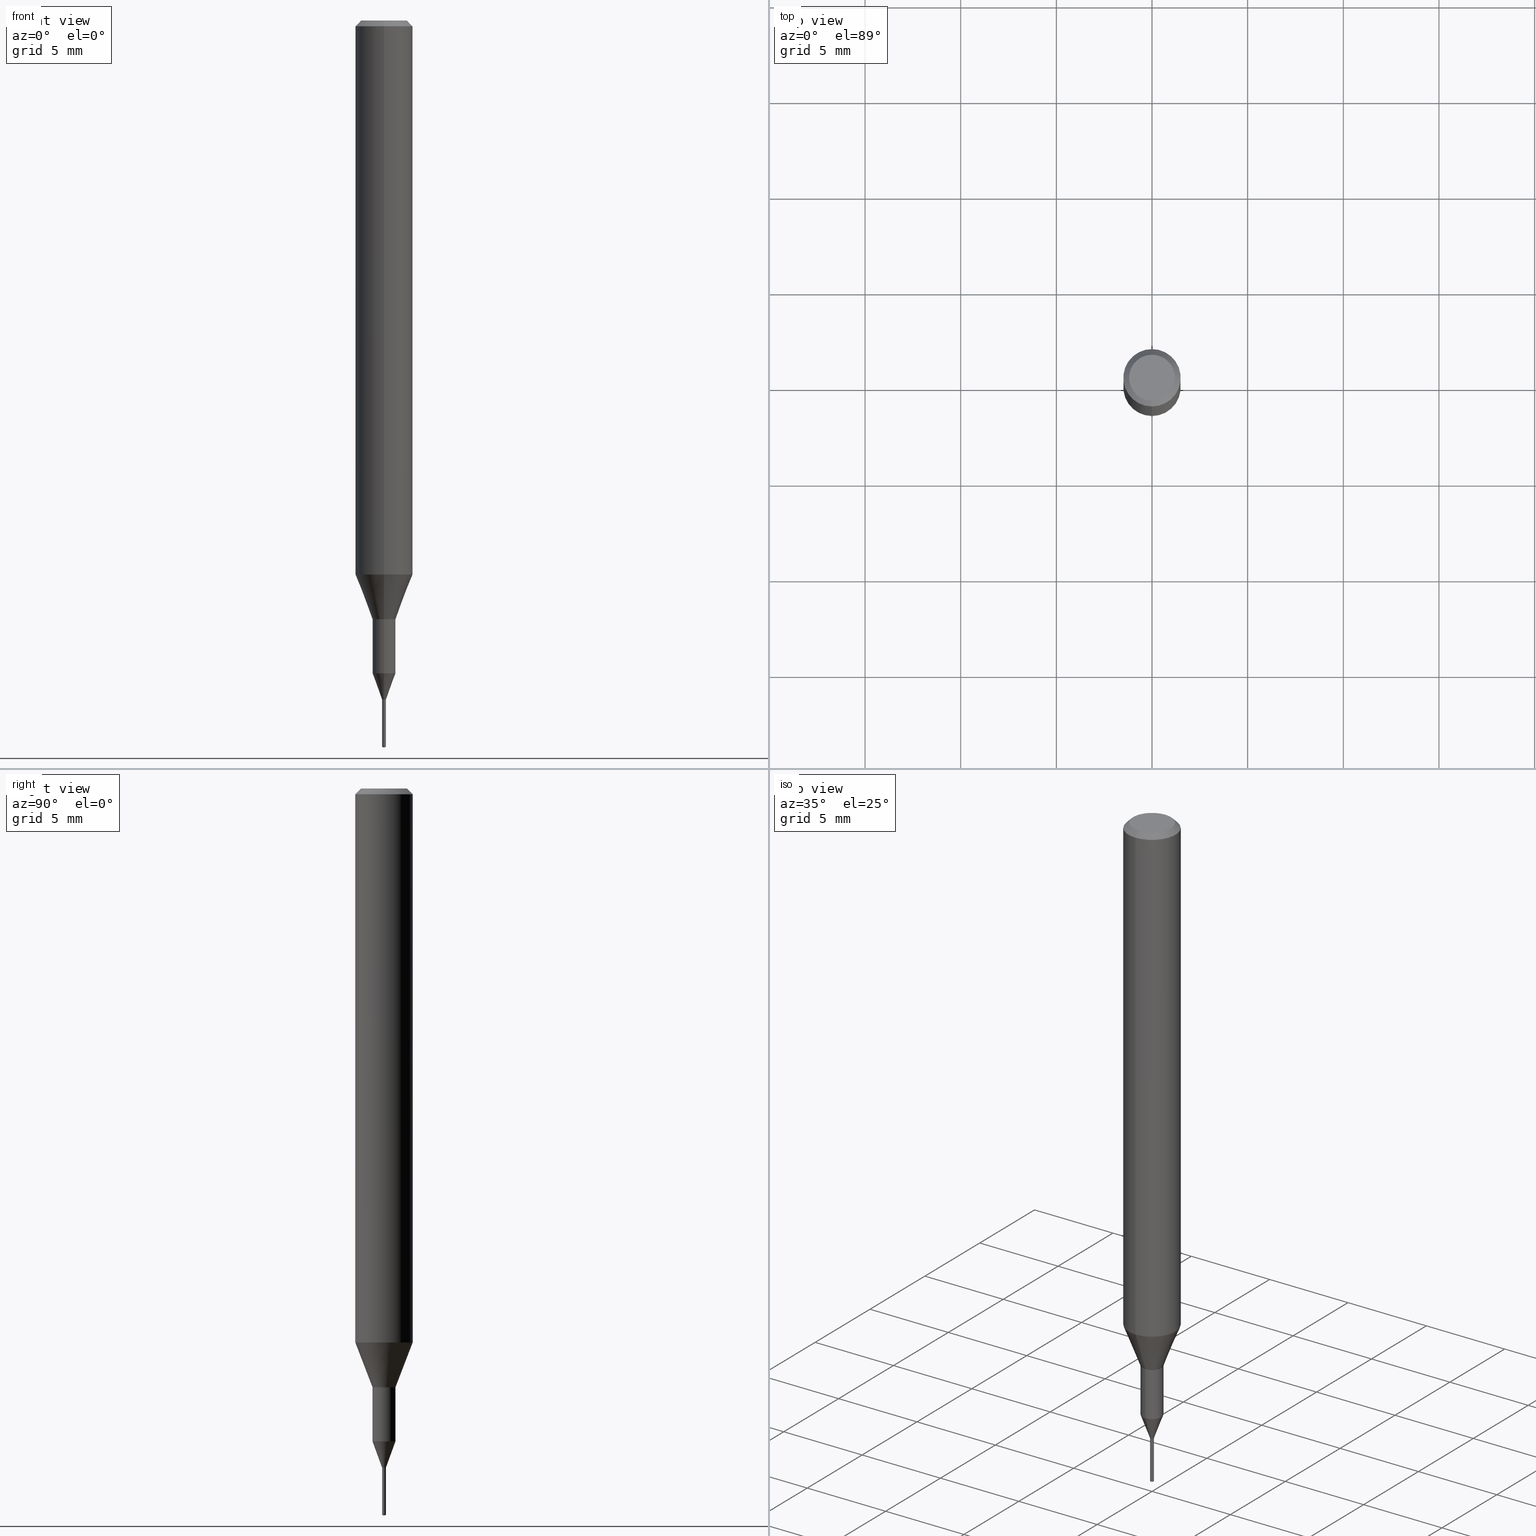
[diagram: canonical four-view strip — front | top / right | iso, engineering-drawing reading convention]
A machine part, canonical four-view strip (front | top / right | iso — engineering-drawing reading convention). The complete STEP part file that produces these views, byte-faithful:
ISO-10303-21;
HEADER;
FILE_DESCRIPTION(('no description'),'unknown implementation level');
FILE_NAME('C-UMD2020-025-Huellk.stp','  ',('CIMSOURCE GmbH'),('CADClick - KiM GmbH - www.kimweb.de'),'unknown preprocess','ACIS','unknown authorization');
FILE_SCHEMA(('automotive_design'));
ENDSEC;
DATA;
#1=MECHANICAL_DESIGN_GEOMETRIC_PRESENTATION_REPRESENTATION(' ',(#14,#15,#16,#17,#18,#19,#20,#21,#22,#23,#24,#25,#26,#27,#28,#29,#30,#31,#32,#33,#34,#35,#36,#37,#38,#39,#40,#41,#42,#43,#44,#45,#46,#47,#48,#49,#50,#51,#52,#53,#54,#55,#56,#57,#58,#59,#60,#61,#62,#63,#64,#65,#66,#67,#68,#69,#70,#71,#72,#73,#74,#75,#76,#77,#78,#79,#80,#81,#82,#83,#84,#85,#86,#87,#88,#89,#90,#91,#92),#10);
#2=PRODUCT_DEFINITION_CONTEXT('',#93,'design');
#3=APPLICATION_PROTOCOL_DEFINITION('INTERNATIONAL STANDARD','automotive_design',1994,#93);
#4=PRODUCT_CATEGORY_RELATIONSHIP('NONE','NONE',#94,#95);
#5=SHAPE_DEFINITION_REPRESENTATION(#96,#97);
#6=PRODUCT_DEFINITION_CONTEXT('',#98,'design');
#7=APPLICATION_PROTOCOL_DEFINITION('INTERNATIONAL STANDARD','automotive_design',1994,#98);
#8=PRODUCT_CATEGORY_RELATIONSHIP('NONE','NONE',#99,#100);
#9=SHAPE_DEFINITION_REPRESENTATION(#101,#102);
#10= (GEOMETRIC_REPRESENTATION_CONTEXT(3)GLOBAL_UNCERTAINTY_ASSIGNED_CONTEXT((#105))GLOBAL_UNIT_ASSIGNED_CONTEXT((#107,#108,#109))REPRESENTATION_CONTEXT('NONE','WORKSPACE'));
#14=STYLED_ITEM('',(#111),#112);
#15=STYLED_ITEM('',(#113),#114);
#16=STYLED_ITEM('',(#115),#116);
#17=STYLED_ITEM('',(#117),#118);
#18=STYLED_ITEM('',(#119),#120);
#19=STYLED_ITEM('',(#121),#122);
#20=STYLED_ITEM('',(#123),#124);
#21=STYLED_ITEM('',(#125),#126);
#22=STYLED_ITEM('',(#127),#128);
#23=STYLED_ITEM('',(#129),#130);
#24=STYLED_ITEM('',(#131),#132);
#25=STYLED_ITEM('',(#133),#134);
#26=STYLED_ITEM('',(#135),#136);
#27=STYLED_ITEM('',(#137),#138);
#28=STYLED_ITEM('',(#139),#140);
#29=STYLED_ITEM('',(#141),#142);
#30=STYLED_ITEM('',(#143),#144);
#31=STYLED_ITEM('',(#145),#146);
#32=STYLED_ITEM('',(#147),#148);
#33=STYLED_ITEM('',(#149),#150);
#34=STYLED_ITEM('',(#151),#152);
#35=STYLED_ITEM('',(#153),#154);
#36=STYLED_ITEM('',(#155),#156);
#37=STYLED_ITEM('',(#157),#158);
#38=STYLED_ITEM('',(#159),#160);
#39=STYLED_ITEM('',(#161),#162);
#40=STYLED_ITEM('',(#163),#164);
#41=STYLED_ITEM('',(#165),#166);
#42=STYLED_ITEM('',(#167),#168);
#43=STYLED_ITEM('',(#169),#170);
#44=STYLED_ITEM('',(#171),#172);
#45=STYLED_ITEM('',(#173),#174);
#46=STYLED_ITEM('',(#175),#176);
#47=STYLED_ITEM('',(#177),#178);
#48=STYLED_ITEM('',(#179),#180);
#49=STYLED_ITEM('',(#181),#182);
#50=STYLED_ITEM('',(#183),#184);
#51=STYLED_ITEM('',(#185),#186);
#52=STYLED_ITEM('',(#187),#188);
#53=STYLED_ITEM('',(#189),#190);
#54=STYLED_ITEM('',(#191),#192);
#55=STYLED_ITEM('',(#193),#194);
#56=STYLED_ITEM('',(#195),#196);
#57=STYLED_ITEM('',(#197),#198);
#58=STYLED_ITEM('',(#199),#200);
#59=STYLED_ITEM('',(#201),#202);
#60=STYLED_ITEM('',(#203),#204);
#61=STYLED_ITEM('',(#205),#206);
#62=STYLED_ITEM('',(#207),#208);
#63=STYLED_ITEM('',(#209),#210);
#64=STYLED_ITEM('',(#211),#212);
#65=STYLED_ITEM('',(#213),#214);
#66=STYLED_ITEM('',(#215),#216);
#67=STYLED_ITEM('',(#217),#218);
#68=STYLED_ITEM('',(#219),#220);
#69=STYLED_ITEM('',(#221),#222);
#70=STYLED_ITEM('',(#223),#224);
#71=STYLED_ITEM('',(#225),#226);
#72=STYLED_ITEM('',(#227),#228);
#73=STYLED_ITEM('',(#229),#230);
#74=STYLED_ITEM('',(#231),#232);
#75=STYLED_ITEM('',(#233),#234);
#76=STYLED_ITEM('',(#235),#236);
#77=STYLED_ITEM('',(#237),#238);
#78=STYLED_ITEM('',(#239),#240);
#79=STYLED_ITEM('',(#241),#242);
#80=STYLED_ITEM('',(#243),#244);
#81=STYLED_ITEM('',(#245),#246);
#82=STYLED_ITEM('',(#247),#248);
#83=STYLED_ITEM('',(#249),#250);
#84=STYLED_ITEM('',(#251),#252);
#85=STYLED_ITEM('',(#253),#254);
#86=STYLED_ITEM('',(#255),#256);
#87=STYLED_ITEM('',(#257),#258);
#88=STYLED_ITEM('',(#259),#260);
#89=STYLED_ITEM('',(#261),#262);
#90=STYLED_ITEM('',(#263),#264);
#91=STYLED_ITEM('',(#265),#266);
#92=STYLED_ITEM('',(#267),#268);
#93=APPLICATION_CONTEXT(' ');
#94=PRODUCT_CATEGORY('part','NONE');
#95=PRODUCT_RELATED_PRODUCT_CATEGORY('detail',' ',(#269));
#96=PRODUCT_DEFINITION_SHAPE('NONE','NONE',#270);
#97=ADVANCED_BREP_SHAPE_REPRESENTATION('1',(#114,#271),#10);
#98=APPLICATION_CONTEXT(' ');
#99=PRODUCT_CATEGORY('part','NONE');
#100=PRODUCT_RELATED_PRODUCT_CATEGORY('detail',' ',(#272));
#101=PRODUCT_DEFINITION_SHAPE('NONE','NONE',#273);
#102=ADVANCED_BREP_SHAPE_REPRESENTATION('2',(#148,#274),#10);
#105=UNCERTAINTY_MEASURE_WITH_UNIT(LENGTH_MEASURE(1.0E-006),#107,'','');
#107= (CONVERSION_BASED_UNIT('MILLIMETRE',#277)LENGTH_UNIT()NAMED_UNIT(#280));
#108= (NAMED_UNIT(#282)PLANE_ANGLE_UNIT()SI_UNIT($,.RADIAN.));
#109= (NAMED_UNIT(#282)SOLID_ANGLE_UNIT()SI_UNIT($,.STERADIAN.));
#111=PRESENTATION_STYLE_ASSIGNMENT((#288));
#112=EDGE_CURVE('',#200,#206,#289,.T.);
#113=PRESENTATION_STYLE_ASSIGNMENT((#290));
#114=MANIFOLD_SOLID_BREP('1',#291);
#115=PRESENTATION_STYLE_ASSIGNMENT((#292));
#116=EDGE_CURVE('',#202,#266,#293,.T.);
#117=PRESENTATION_STYLE_ASSIGNMENT((#294));
#118=ADVANCED_FACE('',(#295),#296,.T.);
#119=PRESENTATION_STYLE_ASSIGNMENT((#297));
#120=EDGE_CURVE('',#266,#144,#298,.T.);
#121=PRESENTATION_STYLE_ASSIGNMENT((#299));
#122=VERTEX_POINT('',#300);
#123=PRESENTATION_STYLE_ASSIGNMENT((#301));
#124=VERTEX_POINT('',#302);
#125=PRESENTATION_STYLE_ASSIGNMENT((#303));
#126=EDGE_CURVE('',#146,#190,#304,.T.);
#127=PRESENTATION_STYLE_ASSIGNMENT((#305));
#128=ADVANCED_FACE('',(#306),#307,.T.);
#129=PRESENTATION_STYLE_ASSIGNMENT((#308));
#130=EDGE_CURVE('',#240,#162,#309,.T.);
#131=PRESENTATION_STYLE_ASSIGNMENT((#310));
#132=ADVANCED_FACE('',(#311),#312,.T.);
#133=PRESENTATION_STYLE_ASSIGNMENT((#313));
#134=EDGE_CURVE('',#124,#240,#314,.T.);
#135=PRESENTATION_STYLE_ASSIGNMENT((#315));
#136=EDGE_CURVE('',#188,#190,#316,.T.);
#137=PRESENTATION_STYLE_ASSIGNMENT((#317));
#138=EDGE_CURVE('',#250,#206,#318,.T.);
#139=PRESENTATION_STYLE_ASSIGNMENT((#319));
#140=EDGE_CURVE('',#218,#250,#320,.T.);
#141=PRESENTATION_STYLE_ASSIGNMENT((#321));
#142=EDGE_CURVE('',#162,#188,#322,.T.);
#143=PRESENTATION_STYLE_ASSIGNMENT((#323));
#144=VERTEX_POINT('',#324);
#145=PRESENTATION_STYLE_ASSIGNMENT((#325));
#146=VERTEX_POINT('',#326);
#147=PRESENTATION_STYLE_ASSIGNMENT((#327));
#148=MANIFOLD_SOLID_BREP('2',#328);
#149=PRESENTATION_STYLE_ASSIGNMENT((#329));
#150=ADVANCED_FACE('',(#330),#331,.T.);
#151=PRESENTATION_STYLE_ASSIGNMENT((#332));
#152=EDGE_CURVE('',#144,#234,#333,.T.);
#153=PRESENTATION_STYLE_ASSIGNMENT((#334));
#154=VERTEX_POINT('',#335);
#155=PRESENTATION_STYLE_ASSIGNMENT((#336));
#156=EDGE_CURVE('',#240,#198,#337,.T.);
#157=PRESENTATION_STYLE_ASSIGNMENT((#338));
#158=EDGE_CURVE('',#154,#254,#339,.T.);
#159=PRESENTATION_STYLE_ASSIGNMENT((#340));
#160=ADVANCED_FACE('',(#341),#342,.T.);
#161=PRESENTATION_STYLE_ASSIGNMENT((#343));
#162=VERTEX_POINT('',#344);
#163=PRESENTATION_STYLE_ASSIGNMENT((#345));
#164=EDGE_CURVE('',#254,#202,#346,.T.);
#165=PRESENTATION_STYLE_ASSIGNMENT((#347));
#166=EDGE_CURVE('',#154,#266,#348,.T.);
#167=PRESENTATION_STYLE_ASSIGNMENT((#349));
#168=EDGE_CURVE('',#146,#124,#350,.T.);
#169=PRESENTATION_STYLE_ASSIGNMENT((#351));
#170=ADVANCED_FACE('',(#352),#353,.T.);
#171=PRESENTATION_STYLE_ASSIGNMENT((#354));
#172=EDGE_CURVE('',#122,#196,#355,.T.);
#173=PRESENTATION_STYLE_ASSIGNMENT((#356));
#174=ADVANCED_FACE('',(#357),#358,.T.);
#175=PRESENTATION_STYLE_ASSIGNMENT((#359));
#176=ADVANCED_FACE('',(#360),#361,.T.);
#177=PRESENTATION_STYLE_ASSIGNMENT((#362));
#178=EDGE_CURVE('',#234,#262,#363,.T.);
#179=PRESENTATION_STYLE_ASSIGNMENT((#364));
#180=EDGE_CURVE('',#206,#200,#365,.T.);
#181=PRESENTATION_STYLE_ASSIGNMENT((#366));
#182=EDGE_CURVE('',#196,#122,#367,.T.);
#183=PRESENTATION_STYLE_ASSIGNMENT((#368));
#184=ADVANCED_FACE('',(#369),#370,.T.);
#185=PRESENTATION_STYLE_ASSIGNMENT((#371));
#186=ADVANCED_FACE('',(#372),#373,.T.);
#187=PRESENTATION_STYLE_ASSIGNMENT((#374));
#188=VERTEX_POINT('',#375);
#189=PRESENTATION_STYLE_ASSIGNMENT((#376));
#190=VERTEX_POINT('',#377);
#191=PRESENTATION_STYLE_ASSIGNMENT((#378));
#192=EDGE_CURVE('',#222,#162,#379,.T.);
#193=PRESENTATION_STYLE_ASSIGNMENT((#380));
#194=ADVANCED_FACE('',(#381),#382,.T.);
#195=PRESENTATION_STYLE_ASSIGNMENT((#383));
#196=VERTEX_POINT('',#384);
#197=PRESENTATION_STYLE_ASSIGNMENT((#385));
#198=VERTEX_POINT('',#386);
#199=PRESENTATION_STYLE_ASSIGNMENT((#387));
#200=VERTEX_POINT('',#388);
#201=PRESENTATION_STYLE_ASSIGNMENT((#389));
#202=VERTEX_POINT('',#390);
#203=PRESENTATION_STYLE_ASSIGNMENT((#391));
#204=ADVANCED_FACE('',(#392,#393),#394,.T.);
#205=PRESENTATION_STYLE_ASSIGNMENT((#395));
#206=VERTEX_POINT('',#396);
#207=PRESENTATION_STYLE_ASSIGNMENT((#397));
#208=EDGE_CURVE('',#144,#262,#398,.T.);
#209=PRESENTATION_STYLE_ASSIGNMENT((#399));
#210=EDGE_CURVE('',#262,#144,#400,.T.);
#211=PRESENTATION_STYLE_ASSIGNMENT((#401));
#212=EDGE_CURVE('',#190,#146,#402,.T.);
#213=PRESENTATION_STYLE_ASSIGNMENT((#403));
#214=EDGE_CURVE('',#250,#218,#404,.T.);
#215=PRESENTATION_STYLE_ASSIGNMENT((#405));
#216=EDGE_CURVE('',#202,#254,#406,.T.);
#217=PRESENTATION_STYLE_ASSIGNMENT((#407));
#218=VERTEX_POINT('',#408);
#219=PRESENTATION_STYLE_ASSIGNMENT((#409));
#220=ADVANCED_FACE('',(#410),#411,.T.);
#221=PRESENTATION_STYLE_ASSIGNMENT((#412));
#222=VERTEX_POINT('',#413);
#223=PRESENTATION_STYLE_ASSIGNMENT((#414));
#224=EDGE_CURVE('',#188,#124,#415,.T.);
#225=PRESENTATION_STYLE_ASSIGNMENT((#416));
#226=EDGE_CURVE('',#162,#240,#417,.T.);
#227=PRESENTATION_STYLE_ASSIGNMENT((#418));
#228=ADVANCED_FACE('',(#419),#420,.T.);
#229=PRESENTATION_STYLE_ASSIGNMENT((#421));
#230=ADVANCED_FACE('',(#422),#423,.T.);
#231=PRESENTATION_STYLE_ASSIGNMENT((#424));
#232=EDGE_CURVE('',#222,#198,#425,.T.);
#233=PRESENTATION_STYLE_ASSIGNMENT((#426));
#234=VERTEX_POINT('',#427);
#235=PRESENTATION_STYLE_ASSIGNMENT((#428));
#236=EDGE_CURVE('',#262,#154,#429,.T.);
#237=PRESENTATION_STYLE_ASSIGNMENT((#430));
#238=EDGE_CURVE('',#200,#218,#431,.T.);
#239=PRESENTATION_STYLE_ASSIGNMENT((#432));
#240=VERTEX_POINT('',#433);
#241=PRESENTATION_STYLE_ASSIGNMENT((#434));
#242=EDGE_CURVE('',#196,#250,#435,.T.);
#243=PRESENTATION_STYLE_ASSIGNMENT((#436));
#244=ADVANCED_FACE('',(#437),#438,.T.);
#245=PRESENTATION_STYLE_ASSIGNMENT((#439));
#246=ADVANCED_FACE('',(#440),#441,.T.);
#247=PRESENTATION_STYLE_ASSIGNMENT((#442));
#248=EDGE_CURVE('',#124,#188,#443,.T.);
#249=PRESENTATION_STYLE_ASSIGNMENT((#444));
#250=VERTEX_POINT('',#445);
#251=PRESENTATION_STYLE_ASSIGNMENT((#446));
#252=EDGE_CURVE('',#198,#222,#447,.T.);
#253=PRESENTATION_STYLE_ASSIGNMENT((#448));
#254=VERTEX_POINT('',#449);
#255=PRESENTATION_STYLE_ASSIGNMENT((#450));
#256=EDGE_CURVE('',#218,#122,#451,.T.);
#257=PRESENTATION_STYLE_ASSIGNMENT((#452));
#258=ADVANCED_FACE('',(#453),#454,.T.);
#259=PRESENTATION_STYLE_ASSIGNMENT((#455));
#260=ADVANCED_FACE('',(#456),#457,.T.);
#261=PRESENTATION_STYLE_ASSIGNMENT((#458));
#262=VERTEX_POINT('',#459);
#263=PRESENTATION_STYLE_ASSIGNMENT((#460));
#264=ADVANCED_FACE('',(#461),#462,.T.);
#265=PRESENTATION_STYLE_ASSIGNMENT((#463));
#266=VERTEX_POINT('',#464);
#267=PRESENTATION_STYLE_ASSIGNMENT((#465));
#268=EDGE_CURVE('',#266,#154,#466,.T.);
#269=PRODUCT('1','1','PART-1-DESC',(#467));
#270=PRODUCT_DEFINITION('NONE','NONE',#468,#2);
#271=AXIS2_PLACEMENT_3D('',#469,#470,#471);
#272=PRODUCT('2','2','PART-2-DESC',(#472));
#273=PRODUCT_DEFINITION('NONE','NONE',#473,#6);
#274=AXIS2_PLACEMENT_3D('',#474,#475,#476);
#277=LENGTH_MEASURE_WITH_UNIT(LENGTH_MEASURE(1.0),#477);
#280=DIMENSIONAL_EXPONENTS(1.0,0.0,0.0,0.0,0.0,0.0,0.0);
#282=DIMENSIONAL_EXPONENTS(0.0,0.0,0.0,0.0,0.0,0.0,0.0);
#288=CURVE_STYLE('',#478,POSITIVE_LENGTH_MEASURE(1.0E-006),#479);
#289=CIRCLE('',#480,0.59995);
#290=SURFACE_STYLE_USAGE(.BOTH.,#481);
#291=CLOSED_SHELL('',(#160,#220,#264,#228,#184,#194,#260,#230,#128,#204,#132,#118,#246));
#292=CURVE_STYLE('',#482,POSITIVE_LENGTH_MEASURE(1.0E-006),#483);
#293=LINE('',#484,#485);
#294=SURFACE_STYLE_USAGE(.BOTH.,#486);
#295=FACE_OUTER_BOUND('',#487,.T.);
#296=CONICAL_SURFACE('',#488,0.349993193231441,0.348972595279104);
#297=CURVE_STYLE('',#489,POSITIVE_LENGTH_MEASURE(1.0E-006),#490);
#298=LINE('',#491,#492);
#299=POINT_STYLE(' ',#493,POSITIVE_LENGTH_MEASURE(1.0E-006),#494);
#300=CARTESIAN_POINT('',(0.0,0.100036386462882,-35.4999));
#301=POINT_STYLE(' ',#495,POSITIVE_LENGTH_MEASURE(1.0E-006),#496);
#302=CARTESIAN_POINT('',(0.0,1.5,-0.300000000000001));
#303=CURVE_STYLE('',#497,POSITIVE_LENGTH_MEASURE(1.0E-006),#498);
#304=CIRCLE('',#499,1.2);
#305=SURFACE_STYLE_USAGE(.BOTH.,#500);
#306=FACE_OUTER_BOUND('',#501,.T.);
#307=CONICAL_SURFACE('',#502,1.05,0.366459241971866);
#308=CURVE_STYLE('',#503,POSITIVE_LENGTH_MEASURE(1.0E-006),#504);
#309=CIRCLE('',#505,1.5);
#310=SURFACE_STYLE_USAGE(.BOTH.,#506);
#311=FACE_OUTER_BOUND('',#507,.T.);
#312=CYLINDRICAL_SURFACE('',#508,0.59995);
#313=CURVE_STYLE('',#509,POSITIVE_LENGTH_MEASURE(1.0E-006),#510);
#314=LINE('',#511,#512);
#315=CURVE_STYLE('',#513,POSITIVE_LENGTH_MEASURE(1.0E-006),#514);
#316=LINE('',#515,#516);
#317=CURVE_STYLE('',#517,POSITIVE_LENGTH_MEASURE(1.0E-006),#518);
#318=LINE('',#519,#520);
#319=CURVE_STYLE('',#521,POSITIVE_LENGTH_MEASURE(1.0E-006),#522);
#320=CIRCLE('',#523,0.59995);
#321=CURVE_STYLE('',#524,POSITIVE_LENGTH_MEASURE(1.0E-006),#525);
#322=LINE('',#526,#527);
#323=POINT_STYLE(' ',#528,POSITIVE_LENGTH_MEASURE(1.0E-006),#529);
#324=CARTESIAN_POINT('',(-0.1,0.0,-37.97320508));
#325=POINT_STYLE(' ',#530,POSITIVE_LENGTH_MEASURE(1.0E-006),#531);
#326=CARTESIAN_POINT('',(0.0,1.2,0.0));
#327=SURFACE_STYLE_USAGE(.BOTH.,#532);
#328=CLOSED_SHELL('',(#244,#186,#174,#176,#150,#170,#258));
#329=SURFACE_STYLE_USAGE(.BOTH.,#533);
#330=FACE_OUTER_BOUND('',#534,.T.);
#331=CONICAL_SURFACE('',#535,0.100518195050946,1.47460534053223);
#332=CURVE_STYLE('',#536,POSITIVE_LENGTH_MEASURE(1.0E-006),#537);
#333=LINE('',#538,#539);
#334=POINT_STYLE(' ',#540,POSITIVE_LENGTH_MEASURE(1.0E-006),#541);
#335=CARTESIAN_POINT('',(0.1,1.22460635382238E-017,-35.5));
#336=CURVE_STYLE('',#542,POSITIVE_LENGTH_MEASURE(1.0E-006),#543);
#337=LINE('',#544,#545);
#338=CURVE_STYLE('',#546,POSITIVE_LENGTH_MEASURE(1.0E-006),#547);
#339=LINE('',#548,#549);
#340=SURFACE_STYLE_USAGE(.BOTH.,#550);
#341=FACE_OUTER_BOUND('',#551,.T.);
#342=CONICAL_SURFACE('',#552,0.349993193231441,0.348972595279104);
#343=POINT_STYLE(' ',#553,POSITIVE_LENGTH_MEASURE(1.0E-006),#554);
#344=CARTESIAN_POINT('',(1.83690953073357E-016,-1.5,-28.955));
#345=CURVE_STYLE('',#555,POSITIVE_LENGTH_MEASURE(1.0E-006),#556);
#346=CIRCLE('',#557,0.101036390101892);
#347=CURVE_STYLE('',#558,POSITIVE_LENGTH_MEASURE(1.0E-006),#559);
#348=CIRCLE('',#560,0.1);
#349=CURVE_STYLE('',#561,POSITIVE_LENGTH_MEASURE(1.0E-006),#562);
#350=LINE('',#563,#564);
#351=SURFACE_STYLE_USAGE(.BOTH.,#565);
#352=FACE_OUTER_BOUND('',#566,.T.);
#353=CYLINDRICAL_SURFACE('',#567,0.1);
#354=CURVE_STYLE('',#568,POSITIVE_LENGTH_MEASURE(1.0E-006),#569);
#355=CIRCLE('',#570,0.100036386462882);
#356=SURFACE_STYLE_USAGE(.BOTH.,#571);
#357=FACE_OUTER_BOUND('',#572,.T.);
#358=CONICAL_SURFACE('',#573,0.100518195050946,1.47460534053223);
#359=SURFACE_STYLE_USAGE(.BOTH.,#574);
#360=FACE_OUTER_BOUND('',#575,.T.);
#361=PLANE('',#576);
#362=CURVE_STYLE('',#577,POSITIVE_LENGTH_MEASURE(1.0E-006),#578);
#363=LINE('',#579,#580);
#364=CURVE_STYLE('',#581,POSITIVE_LENGTH_MEASURE(1.0E-006),#582);
#365=CIRCLE('',#583,0.59995);
#366=CURVE_STYLE('',#584,POSITIVE_LENGTH_MEASURE(1.0E-006),#585);
#367=CIRCLE('',#586,0.100036386462882);
#368=SURFACE_STYLE_USAGE(.BOTH.,#587);
#369=FACE_OUTER_BOUND('',#588,.T.);
#370=CONICAL_SURFACE('',#589,1.35,0.785398163397447);
#371=SURFACE_STYLE_USAGE(.BOTH.,#590);
#372=FACE_OUTER_BOUND('',#591,.T.);
#373=CYLINDRICAL_SURFACE('',#592,0.1);
#374=POINT_STYLE(' ',#593,POSITIVE_LENGTH_MEASURE(1.0E-006),#594);
#375=CARTESIAN_POINT('',(1.83690953073357E-016,-1.5,-0.300000000000001));
#376=POINT_STYLE(' ',#595,POSITIVE_LENGTH_MEASURE(1.0E-006),#596);
#377=CARTESIAN_POINT('',(1.46952762458685E-016,-1.2,0.0));
#378=CURVE_STYLE('',#597,POSITIVE_LENGTH_MEASURE(1.0E-006),#598);
#379=LINE('',#599,#600);
#380=SURFACE_STYLE_USAGE(.BOTH.,#601);
#381=FACE_OUTER_BOUND('',#602,.T.);
#382=PLANE('',#603);
#383=POINT_STYLE(' ',#604,POSITIVE_LENGTH_MEASURE(1.0E-006),#605);
#384=CARTESIAN_POINT('',(1.22505194475876E-017,-0.100036386462882,-35.4999));
#385=POINT_STYLE(' ',#606,POSITIVE_LENGTH_MEASURE(1.0E-006),#607);
#386=CARTESIAN_POINT('',(0.0,0.6,-31.3));
#387=POINT_STYLE(' ',#608,POSITIVE_LENGTH_MEASURE(1.0E-006),#609);
#388=CARTESIAN_POINT('',(0.0,0.59995,-31.3));
#389=POINT_STYLE(' ',#610,POSITIVE_LENGTH_MEASURE(1.0E-006),#611);
#390=CARTESIAN_POINT('',(-0.101036390101892,0.0,-35.4999));
#391=SURFACE_STYLE_USAGE(.BOTH.,#612);
#392=FACE_BOUND('',#613,.T.);
#393=FACE_OUTER_BOUND('',#614,.T.);
#394=PLANE('',#615);
#395=POINT_STYLE(' ',#616,POSITIVE_LENGTH_MEASURE(1.0E-006),#617);
#396=CARTESIAN_POINT('',(7.34702581975735E-017,-0.59995,-31.3));
#397=CURVE_STYLE('',#618,POSITIVE_LENGTH_MEASURE(1.0E-006),#619);
#398=CIRCLE('',#620,0.1);
#399=CURVE_STYLE('',#621,POSITIVE_LENGTH_MEASURE(1.0E-006),#622);
#400=CIRCLE('',#623,0.1);
#401=CURVE_STYLE('',#624,POSITIVE_LENGTH_MEASURE(1.0E-006),#625);
#402=CIRCLE('',#626,1.2);
#403=CURVE_STYLE('',#627,POSITIVE_LENGTH_MEASURE(1.0E-006),#628);
#404=CIRCLE('',#629,0.59995);
#405=CURVE_STYLE('',#630,POSITIVE_LENGTH_MEASURE(1.0E-006),#631);
#406=CIRCLE('',#632,0.101036390101892);
#407=POINT_STYLE(' ',#633,POSITIVE_LENGTH_MEASURE(1.0E-006),#634);
#408=CARTESIAN_POINT('',(0.0,0.59995,-34.126));
#409=SURFACE_STYLE_USAGE(.BOTH.,#635);
#410=FACE_OUTER_BOUND('',#636,.T.);
#411=CYLINDRICAL_SURFACE('',#637,0.59995);
#412=POINT_STYLE(' ',#638,POSITIVE_LENGTH_MEASURE(1.0E-006),#639);
#413=CARTESIAN_POINT('',(7.34763812293426E-017,-0.6,-31.3));
#414=CURVE_STYLE('',#640,POSITIVE_LENGTH_MEASURE(1.0E-006),#641);
#415=CIRCLE('',#642,1.5);
#416=CURVE_STYLE('',#643,POSITIVE_LENGTH_MEASURE(1.0E-006),#644);
#417=CIRCLE('',#645,1.5);
#418=SURFACE_STYLE_USAGE(.BOTH.,#646);
#419=FACE_OUTER_BOUND('',#647,.T.);
#420=CYLINDRICAL_SURFACE('',#648,1.5);
#421=SURFACE_STYLE_USAGE(.BOTH.,#649);
#422=FACE_OUTER_BOUND('',#650,.T.);
#423=CYLINDRICAL_SURFACE('',#651,1.5);
#424=CURVE_STYLE('',#652,POSITIVE_LENGTH_MEASURE(1.0E-006),#653);
#425=CIRCLE('',#654,0.6);
#426=POINT_STYLE(' ',#655,POSITIVE_LENGTH_MEASURE(1.0E-006),#656);
#427=CARTESIAN_POINT('',(0.0,0.0,-38.0));
#428=CURVE_STYLE('',#657,POSITIVE_LENGTH_MEASURE(1.0E-006),#658);
#429=LINE('',#659,#660);
#430=CURVE_STYLE('',#661,POSITIVE_LENGTH_MEASURE(1.0E-006),#662);
#431=LINE('',#663,#664);
#432=POINT_STYLE(' ',#665,POSITIVE_LENGTH_MEASURE(1.0E-006),#666);
#433=CARTESIAN_POINT('',(0.0,1.5,-28.955));
#434=CURVE_STYLE('',#667,POSITIVE_LENGTH_MEASURE(1.0E-006),#668);
#435=LINE('',#669,#670);
#436=SURFACE_STYLE_USAGE(.BOTH.,#671);
#437=FACE_OUTER_BOUND('',#672,.T.);
#438=CONICAL_SURFACE('',#673,0.05,1.30899693193389);
#439=SURFACE_STYLE_USAGE(.BOTH.,#674);
#440=FACE_OUTER_BOUND('',#675,.T.);
#441=PLANE('',#676);
#442=CURVE_STYLE('',#677,POSITIVE_LENGTH_MEASURE(1.0E-006),#678);
#443=CIRCLE('',#679,1.5);
#444=POINT_STYLE(' ',#680,POSITIVE_LENGTH_MEASURE(1.0E-006),#681);
#445=CARTESIAN_POINT('',(7.34702581975735E-017,-0.59995,-34.126));
#446=CURVE_STYLE('',#682,POSITIVE_LENGTH_MEASURE(1.0E-006),#683);
#447=CIRCLE('',#684,0.6);
#448=POINT_STYLE(' ',#685,POSITIVE_LENGTH_MEASURE(1.0E-006),#686);
#449=CARTESIAN_POINT('',(0.101036390101892,1.23729805286054E-017,-35.4999));
#450=CURVE_STYLE('',#687,POSITIVE_LENGTH_MEASURE(1.0E-006),#688);
#451=LINE('',#689,#690);
#452=SURFACE_STYLE_USAGE(.BOTH.,#691);
#453=FACE_OUTER_BOUND('',#692,.T.);
#454=CONICAL_SURFACE('',#693,0.05,1.30899693193389);
#455=SURFACE_STYLE_USAGE(.BOTH.,#694);
#456=FACE_OUTER_BOUND('',#695,.T.);
#457=CONICAL_SURFACE('',#696,1.35,0.785398163397447);
#458=POINT_STYLE(' ',#697,POSITIVE_LENGTH_MEASURE(1.0E-006),#698);
#459=CARTESIAN_POINT('',(0.1,1.22460635382238E-017,-37.97320508));
#460=SURFACE_STYLE_USAGE(.BOTH.,#699);
#461=FACE_OUTER_BOUND('',#700,.T.);
#462=CONICAL_SURFACE('',#701,1.05,0.366459241971866);
#463=POINT_STYLE(' ',#702,POSITIVE_LENGTH_MEASURE(1.0E-006),#703);
#464=CARTESIAN_POINT('',(-0.1,0.0,-35.5));
#465=CURVE_STYLE('',#704,POSITIVE_LENGTH_MEASURE(1.0E-006),#705);
#466=CIRCLE('',#706,0.1);
#467=PRODUCT_CONTEXT('',#93,'mechanical');
#468=PRODUCT_DEFINITION_FORMATION_WITH_SPECIFIED_SOURCE(' ','NONE',#269,.NOT_KNOWN.);
#469=CARTESIAN_POINT('',(0.0,0.0,0.0));
#470=DIRECTION('',(0.0,0.0,1.0));
#471=DIRECTION('',(1.0,0.0,0.0));
#472=PRODUCT_CONTEXT('',#98,'mechanical');
#473=PRODUCT_DEFINITION_FORMATION_WITH_SPECIFIED_SOURCE(' ','NONE',#272,.NOT_KNOWN.);
#474=CARTESIAN_POINT('',(0.0,0.0,0.0));
#475=DIRECTION('',(0.0,0.0,1.0));
#476=DIRECTION('',(1.0,0.0,0.0));
#477= (NAMED_UNIT(#280)LENGTH_UNIT()SI_UNIT(.MILLI.,.METRE.));
#478=DRAUGHTING_PRE_DEFINED_CURVE_FONT('continuous');
#479=COLOUR_RGB('',0.498039215803146,0.498039215803146,0.498039215803146);
#480=AXIS2_PLACEMENT_3D('',#708,#709,#710);
#481=SURFACE_SIDE_STYLE('',(#711));
#482=DRAUGHTING_PRE_DEFINED_CURVE_FONT('continuous');
#483=COLOUR_RGB('',0.800000011920929,0.800000011920929,0.800000011920929);
#484=CARTESIAN_POINT('',(-0.100518195050946,-1.23095220334146E-017,-35.49995));
#485=VECTOR('',#712,1.0);
#486=SURFACE_SIDE_STYLE('',(#713));
#487=EDGE_LOOP('',(#714,#715,#716,#717));
#488=AXIS2_PLACEMENT_3D('',#718,#719,#720);
#489=DRAUGHTING_PRE_DEFINED_CURVE_FONT('continuous');
#490=COLOUR_RGB('',0.800000011920929,0.800000011920929,0.800000011920929);
#491=CARTESIAN_POINT('',(-0.1,-1.22460635382238E-017,-36.73660254));
#492=VECTOR('',#721,1.0);
#493=PRE_DEFINED_MARKER('');
#494=COLOUR_RGB('',0.498039215803146,0.498039215803146,0.498039215803146);
#495=PRE_DEFINED_MARKER('');
#496=COLOUR_RGB('',0.498039215803146,0.498039215803146,0.498039215803146);
#497=DRAUGHTING_PRE_DEFINED_CURVE_FONT('continuous');
#498=COLOUR_RGB('',0.498039215803146,0.498039215803146,0.498039215803146);
#499=AXIS2_PLACEMENT_3D('',#722,#723,#724);
#500=SURFACE_SIDE_STYLE('',(#725));
#501=EDGE_LOOP('',(#726,#727,#728,#729));
#502=AXIS2_PLACEMENT_3D('',#730,#731,#732);
#503=DRAUGHTING_PRE_DEFINED_CURVE_FONT('continuous');
#504=COLOUR_RGB('',0.498039215803146,0.498039215803146,0.498039215803146);
#505=AXIS2_PLACEMENT_3D('',#733,#734,#735);
#506=SURFACE_SIDE_STYLE('',(#736));
#507=EDGE_LOOP('',(#737,#738,#739,#740));
#508=AXIS2_PLACEMENT_3D('',#741,#742,#743);
#509=DRAUGHTING_PRE_DEFINED_CURVE_FONT('continuous');
#510=COLOUR_RGB('',0.498039215803146,0.498039215803146,0.498039215803146);
#511=CARTESIAN_POINT('',(-1.83690953073357E-016,1.5,-14.6275));
#512=VECTOR('',#744,1.0);
#513=DRAUGHTING_PRE_DEFINED_CURVE_FONT('continuous');
#514=COLOUR_RGB('',0.498039215803146,0.498039215803146,0.498039215803146);
#515=CARTESIAN_POINT('',(1.65321857766021E-016,-1.35,-0.149999999999999));
#516=VECTOR('',#745,1.0);
#517=DRAUGHTING_PRE_DEFINED_CURVE_FONT('continuous');
#518=COLOUR_RGB('',0.498039215803146,0.498039215803146,0.498039215803146);
#519=CARTESIAN_POINT('',(7.34702581975735E-017,-0.59995,-32.713));
#520=VECTOR('',#746,1.0);
#521=DRAUGHTING_PRE_DEFINED_CURVE_FONT('continuous');
#522=COLOUR_RGB('',0.498039215803146,0.498039215803146,0.498039215803146);
#523=AXIS2_PLACEMENT_3D('',#747,#748,#749);
#524=DRAUGHTING_PRE_DEFINED_CURVE_FONT('continuous');
#525=COLOUR_RGB('',0.498039215803146,0.498039215803146,0.498039215803146);
#526=CARTESIAN_POINT('',(1.83690953073357E-016,-1.5,-14.6275));
#527=VECTOR('',#750,1.0);
#528=PRE_DEFINED_MARKER('');
#529=COLOUR_RGB('',0.800000011920929,0.800000011920929,0.800000011920929);
#530=PRE_DEFINED_MARKER('');
#531=COLOUR_RGB('',0.498039215803146,0.498039215803146,0.498039215803146);
#532=SURFACE_SIDE_STYLE('',(#751));
#533=SURFACE_SIDE_STYLE('',(#752));
#534=EDGE_LOOP('',(#753,#754,#755,#756));
#535=AXIS2_PLACEMENT_3D('',#757,#758,#759);
#536=DRAUGHTING_PRE_DEFINED_CURVE_FONT('continuous');
#537=COLOUR_RGB('',0.800000011920929,0.800000011920929,0.800000011920929);
#538=CARTESIAN_POINT('',(-0.05,-6.12303176911189E-018,-37.98660254));
#539=VECTOR('',#760,1.0);
#540=PRE_DEFINED_MARKER('');
#541=COLOUR_RGB('',0.800000011920929,0.800000011920929,0.800000011920929);
#542=DRAUGHTING_PRE_DEFINED_CURVE_FONT('continuous');
#543=COLOUR_RGB('',0.498039215803146,0.498039215803146,0.498039215803146);
#544=CARTESIAN_POINT('',(-1.2858366715135E-016,1.05,-30.1275));
#545=VECTOR('',#761,1.0);
#546=DRAUGHTING_PRE_DEFINED_CURVE_FONT('continuous');
#547=COLOUR_RGB('',0.800000011920929,0.800000011920929,0.800000011920929);
#548=CARTESIAN_POINT('',(0.100518195050946,1.23095220334146E-017,-35.49995));
#549=VECTOR('',#762,1.0);
#550=SURFACE_SIDE_STYLE('',(#763));
#551=EDGE_LOOP('',(#764,#765,#766,#767));
#552=AXIS2_PLACEMENT_3D('',#768,#769,#770);
#553=PRE_DEFINED_MARKER('');
#554=COLOUR_RGB('',0.498039215803146,0.498039215803146,0.498039215803146);
#555=DRAUGHTING_PRE_DEFINED_CURVE_FONT('continuous');
#556=COLOUR_RGB('',0.800000011920929,0.800000011920929,0.800000011920929);
#557=AXIS2_PLACEMENT_3D('',#771,#772,#773);
#558=DRAUGHTING_PRE_DEFINED_CURVE_FONT('continuous');
#559=COLOUR_RGB('',0.800000011920929,0.800000011920929,0.800000011920929);
#560=AXIS2_PLACEMENT_3D('',#774,#775,#776);
#561=DRAUGHTING_PRE_DEFINED_CURVE_FONT('continuous');
#562=COLOUR_RGB('',0.498039215803146,0.498039215803146,0.498039215803146);
#563=CARTESIAN_POINT('',(-1.65321857766021E-016,1.35,-0.149999999999999));
#564=VECTOR('',#777,1.0);
#565=SURFACE_SIDE_STYLE('',(#778));
#566=EDGE_LOOP('',(#779,#780,#781,#782));
#567=AXIS2_PLACEMENT_3D('',#783,#784,#785);
#568=DRAUGHTING_PRE_DEFINED_CURVE_FONT('continuous');
#569=COLOUR_RGB('',0.498039215803146,0.498039215803146,0.498039215803146);
#570=AXIS2_PLACEMENT_3D('',#786,#787,#788);
#571=SURFACE_SIDE_STYLE('',(#789));
#572=EDGE_LOOP('',(#790,#791,#792,#793));
#573=AXIS2_PLACEMENT_3D('',#794,#795,#796);
#574=SURFACE_SIDE_STYLE('',(#797));
#575=EDGE_LOOP('',(#798,#799));
#576=AXIS2_PLACEMENT_3D('',#800,#801,#802);
#577=DRAUGHTING_PRE_DEFINED_CURVE_FONT('continuous');
#578=COLOUR_RGB('',0.800000011920929,0.800000011920929,0.800000011920929);
#579=CARTESIAN_POINT('',(0.05,6.12303176911189E-018,-37.98660254));
#580=VECTOR('',#803,1.0);
#581=DRAUGHTING_PRE_DEFINED_CURVE_FONT('continuous');
#582=COLOUR_RGB('',0.498039215803146,0.498039215803146,0.498039215803146);
#583=AXIS2_PLACEMENT_3D('',#804,#805,#806);
#584=DRAUGHTING_PRE_DEFINED_CURVE_FONT('continuous');
#585=COLOUR_RGB('',0.498039215803146,0.498039215803146,0.498039215803146);
#586=AXIS2_PLACEMENT_3D('',#807,#808,#809);
#587=SURFACE_SIDE_STYLE('',(#810));
#588=EDGE_LOOP('',(#811,#812,#813,#814));
#589=AXIS2_PLACEMENT_3D('',#815,#816,#817);
#590=SURFACE_SIDE_STYLE('',(#818));
#591=EDGE_LOOP('',(#819,#820,#821,#822));
#592=AXIS2_PLACEMENT_3D('',#823,#824,#825);
#593=PRE_DEFINED_MARKER('');
#594=COLOUR_RGB('',0.498039215803146,0.498039215803146,0.498039215803146);
#595=PRE_DEFINED_MARKER('');
#596=COLOUR_RGB('',0.498039215803146,0.498039215803146,0.498039215803146);
#597=DRAUGHTING_PRE_DEFINED_CURVE_FONT('continuous');
#598=COLOUR_RGB('',0.498039215803146,0.498039215803146,0.498039215803146);
#599=CARTESIAN_POINT('',(1.2858366715135E-016,-1.05,-30.1275));
#600=VECTOR('',#826,1.0);
#601=SURFACE_SIDE_STYLE('',(#827));
#602=EDGE_LOOP('',(#828,#829));
#603=AXIS2_PLACEMENT_3D('',#830,#831,#832);
#604=PRE_DEFINED_MARKER('');
#605=COLOUR_RGB('',0.498039215803146,0.498039215803146,0.498039215803146);
#606=PRE_DEFINED_MARKER('');
#607=COLOUR_RGB('',0.498039215803146,0.498039215803146,0.498039215803146);
#608=PRE_DEFINED_MARKER('');
#609=COLOUR_RGB('',0.498039215803146,0.498039215803146,0.498039215803146);
#610=PRE_DEFINED_MARKER('');
#611=COLOUR_RGB('',0.800000011920929,0.800000011920929,0.800000011920929);
#612=SURFACE_SIDE_STYLE('',(#833));
#613=EDGE_LOOP('',(#834,#835));
#614=EDGE_LOOP('',(#836,#837));
#615=AXIS2_PLACEMENT_3D('',#838,#839,#840);
#616=PRE_DEFINED_MARKER('');
#617=COLOUR_RGB('',0.498039215803146,0.498039215803146,0.498039215803146);
#618=DRAUGHTING_PRE_DEFINED_CURVE_FONT('continuous');
#619=COLOUR_RGB('',0.800000011920929,0.800000011920929,0.800000011920929);
#620=AXIS2_PLACEMENT_3D('',#841,#842,#843);
#621=DRAUGHTING_PRE_DEFINED_CURVE_FONT('continuous');
#622=COLOUR_RGB('',0.800000011920929,0.800000011920929,0.800000011920929);
#623=AXIS2_PLACEMENT_3D('',#844,#845,#846);
#624=DRAUGHTING_PRE_DEFINED_CURVE_FONT('continuous');
#625=COLOUR_RGB('',0.498039215803146,0.498039215803146,0.498039215803146);
#626=AXIS2_PLACEMENT_3D('',#847,#848,#849);
#627=DRAUGHTING_PRE_DEFINED_CURVE_FONT('continuous');
#628=COLOUR_RGB('',0.498039215803146,0.498039215803146,0.498039215803146);
#629=AXIS2_PLACEMENT_3D('',#850,#851,#852);
#630=DRAUGHTING_PRE_DEFINED_CURVE_FONT('continuous');
#631=COLOUR_RGB('',0.800000011920929,0.800000011920929,0.800000011920929);
#632=AXIS2_PLACEMENT_3D('',#853,#854,#855);
#633=PRE_DEFINED_MARKER('');
#634=COLOUR_RGB('',0.498039215803146,0.498039215803146,0.498039215803146);
#635=SURFACE_SIDE_STYLE('',(#856));
#636=EDGE_LOOP('',(#857,#858,#859,#860));
#637=AXIS2_PLACEMENT_3D('',#861,#862,#863);
#638=PRE_DEFINED_MARKER('');
#639=COLOUR_RGB('',0.498039215803146,0.498039215803146,0.498039215803146);
#640=DRAUGHTING_PRE_DEFINED_CURVE_FONT('continuous');
#641=COLOUR_RGB('',0.498039215803146,0.498039215803146,0.498039215803146);
#642=AXIS2_PLACEMENT_3D('',#864,#865,#866);
#643=DRAUGHTING_PRE_DEFINED_CURVE_FONT('continuous');
#644=COLOUR_RGB('',0.498039215803146,0.498039215803146,0.498039215803146);
#645=AXIS2_PLACEMENT_3D('',#867,#868,#869);
#646=SURFACE_SIDE_STYLE('',(#870));
#647=EDGE_LOOP('',(#871,#872,#873,#874));
#648=AXIS2_PLACEMENT_3D('',#875,#876,#877);
#649=SURFACE_SIDE_STYLE('',(#878));
#650=EDGE_LOOP('',(#879,#880,#881,#882));
#651=AXIS2_PLACEMENT_3D('',#883,#884,#885);
#652=DRAUGHTING_PRE_DEFINED_CURVE_FONT('continuous');
#653=COLOUR_RGB('',0.498039215803146,0.498039215803146,0.498039215803146);
#654=AXIS2_PLACEMENT_3D('',#886,#887,#888);
#655=PRE_DEFINED_MARKER('');
#656=COLOUR_RGB('',0.800000011920929,0.800000011920929,0.800000011920929);
#657=DRAUGHTING_PRE_DEFINED_CURVE_FONT('continuous');
#658=COLOUR_RGB('',0.800000011920929,0.800000011920929,0.800000011920929);
#659=CARTESIAN_POINT('',(0.1,1.22460635382238E-017,-36.73660254));
#660=VECTOR('',#889,1.0);
#661=DRAUGHTING_PRE_DEFINED_CURVE_FONT('continuous');
#662=COLOUR_RGB('',0.498039215803146,0.498039215803146,0.498039215803146);
#663=CARTESIAN_POINT('',(-7.34702581975735E-017,0.59995,-32.713));
#664=VECTOR('',#890,1.0);
#665=PRE_DEFINED_MARKER('');
#666=COLOUR_RGB('',0.498039215803146,0.498039215803146,0.498039215803146);
#667=DRAUGHTING_PRE_DEFINED_CURVE_FONT('continuous');
#668=COLOUR_RGB('',0.498039215803146,0.498039215803146,0.498039215803146);
#669=CARTESIAN_POINT('',(4.28603888225806E-017,-0.349993193231441,-34.81295));
#670=VECTOR('',#891,1.0);
#671=SURFACE_SIDE_STYLE('',(#892));
#672=EDGE_LOOP('',(#893,#894,#895));
#673=AXIS2_PLACEMENT_3D('',#896,#897,#898);
#674=SURFACE_SIDE_STYLE('',(#899));
#675=EDGE_LOOP('',(#900,#901));
#676=AXIS2_PLACEMENT_3D('',#902,#903,#904);
#677=DRAUGHTING_PRE_DEFINED_CURVE_FONT('continuous');
#678=COLOUR_RGB('',0.498039215803146,0.498039215803146,0.498039215803146);
#679=AXIS2_PLACEMENT_3D('',#905,#906,#907);
#680=PRE_DEFINED_MARKER('');
#681=COLOUR_RGB('',0.498039215803146,0.498039215803146,0.498039215803146);
#682=DRAUGHTING_PRE_DEFINED_CURVE_FONT('continuous');
#683=COLOUR_RGB('',0.498039215803146,0.498039215803146,0.498039215803146);
#684=AXIS2_PLACEMENT_3D('',#908,#909,#910);
#685=PRE_DEFINED_MARKER('');
#686=COLOUR_RGB('',0.800000011920929,0.800000011920929,0.800000011920929);
#687=DRAUGHTING_PRE_DEFINED_CURVE_FONT('continuous');
#688=COLOUR_RGB('',0.498039215803146,0.498039215803146,0.498039215803146);
#689=CARTESIAN_POINT('',(-4.28603888225806E-017,0.349993193231441,-34.81295));
#690=VECTOR('',#911,1.0);
#691=SURFACE_SIDE_STYLE('',(#912));
#692=EDGE_LOOP('',(#913,#914,#915));
#693=AXIS2_PLACEMENT_3D('',#916,#917,#918);
#694=SURFACE_SIDE_STYLE('',(#919));
#695=EDGE_LOOP('',(#920,#921,#922,#923));
#696=AXIS2_PLACEMENT_3D('',#924,#925,#926);
#697=PRE_DEFINED_MARKER('');
#698=COLOUR_RGB('',0.800000011920929,0.800000011920929,0.800000011920929);
#699=SURFACE_SIDE_STYLE('',(#927));
#700=EDGE_LOOP('',(#928,#929,#930,#931));
#701=AXIS2_PLACEMENT_3D('',#932,#933,#934);
#702=PRE_DEFINED_MARKER('');
#703=COLOUR_RGB('',0.800000011920929,0.800000011920929,0.800000011920929);
#704=DRAUGHTING_PRE_DEFINED_CURVE_FONT('continuous');
#705=COLOUR_RGB('',0.800000011920929,0.800000011920929,0.800000011920929);
#706=AXIS2_PLACEMENT_3D('',#935,#936,#937);
#708=CARTESIAN_POINT('',(0.0,0.0,-31.3));
#709=DIRECTION('',(0.0,0.0,-1.0));
#710=DIRECTION('',(0.0,1.0,0.0));
#711=SURFACE_STYLE_FILL_AREA(#938);
#712=DIRECTION('',(0.995377213171106,1.21894525969935E-016,-0.0960427170571646));
#713=SURFACE_STYLE_FILL_AREA(#939);
#714=ORIENTED_EDGE('',*,*,#256,.T.);
#715=ORIENTED_EDGE('',*,*,#182,.F.);
#716=ORIENTED_EDGE('',*,*,#242,.T.);
#717=ORIENTED_EDGE('',*,*,#214,.T.);
#718=CARTESIAN_POINT('',(0.0,0.0,-34.81295));
#719=DIRECTION('',(-0.0,-0.0,1.0));
#720=DIRECTION('',(0.0,1.0,0.0));
#721=DIRECTION('',(0.0,0.0,-1.0));
#722=CARTESIAN_POINT('',(0.0,0.0,0.0));
#723=DIRECTION('',(0.0,0.0,-1.0));
#724=DIRECTION('',(0.0,1.0,0.0));
#725=SURFACE_STYLE_FILL_AREA(#940);
#726=ORIENTED_EDGE('',*,*,#156,.T.);
#727=ORIENTED_EDGE('',*,*,#232,.F.);
#728=ORIENTED_EDGE('',*,*,#192,.T.);
#729=ORIENTED_EDGE('',*,*,#226,.T.);
#730=CARTESIAN_POINT('',(0.0,0.0,-30.1275));
#731=DIRECTION('',(-0.0,-0.0,1.0));
#732=DIRECTION('',(0.0,1.0,0.0));
#733=CARTESIAN_POINT('',(0.0,0.0,-28.955));
#734=DIRECTION('',(0.0,0.0,-1.0));
#735=DIRECTION('',(0.0,1.0,0.0));
#736=SURFACE_STYLE_FILL_AREA(#941);
#737=ORIENTED_EDGE('',*,*,#238,.T.);
#738=ORIENTED_EDGE('',*,*,#214,.F.);
#739=ORIENTED_EDGE('',*,*,#138,.T.);
#740=ORIENTED_EDGE('',*,*,#180,.T.);
#741=CARTESIAN_POINT('',(0.0,0.0,-32.713));
#742=DIRECTION('',(-0.0,-0.0,1.0));
#743=DIRECTION('',(0.0,1.0,0.0));
#744=DIRECTION('',(0.0,0.0,-1.0));
#745=DIRECTION('',(-8.65927457071934E-017,0.707106781186546,0.707106781186549));
#746=DIRECTION('',(-0.0,-0.0,1.0));
#747=CARTESIAN_POINT('',(0.0,0.0,-34.126));
#748=DIRECTION('',(0.0,0.0,-1.0));
#749=DIRECTION('',(0.0,1.0,0.0));
#750=DIRECTION('',(-0.0,-0.0,1.0));
#751=SURFACE_STYLE_FILL_AREA(#942);
#752=SURFACE_STYLE_FILL_AREA(#943);
#753=ORIENTED_EDGE('',*,*,#116,.T.);
#754=ORIENTED_EDGE('',*,*,#166,.F.);
#755=ORIENTED_EDGE('',*,*,#158,.T.);
#756=ORIENTED_EDGE('',*,*,#164,.T.);
#757=CARTESIAN_POINT('',(0.0,0.0,-35.49995));
#758=DIRECTION('',(-0.0,-0.0,1.0));
#759=DIRECTION('',(-1.0,0.0,0.0));
#760=DIRECTION('',(0.965925824461324,1.18287890195646E-016,-0.258819051923756));
#761=DIRECTION('',(4.38791184365088E-017,-0.358312026550805,-0.93360189140182));
#762=DIRECTION('',(0.995377213171106,1.21894525969935E-016,0.0960427170571646));
#763=SURFACE_STYLE_FILL_AREA(#944);
#764=ORIENTED_EDGE('',*,*,#256,.F.);
#765=ORIENTED_EDGE('',*,*,#140,.T.);
#766=ORIENTED_EDGE('',*,*,#242,.F.);
#767=ORIENTED_EDGE('',*,*,#172,.F.);
#768=CARTESIAN_POINT('',(0.0,0.0,-34.81295));
#769=DIRECTION('',(-0.0,-0.0,1.0));
#770=DIRECTION('',(0.0,1.0,0.0));
#771=CARTESIAN_POINT('',(0.0,0.0,-35.4999));
#772=DIRECTION('',(0.0,0.0,-1.0));
#773=DIRECTION('',(-1.0,0.0,0.0));
#774=CARTESIAN_POINT('',(0.0,0.0,-35.5));
#775=DIRECTION('',(0.0,0.0,-1.0));
#776=DIRECTION('',(-1.0,0.0,0.0));
#777=DIRECTION('',(-8.65927457071934E-017,0.707106781186546,-0.707106781186549));
#778=SURFACE_STYLE_FILL_AREA(#945);
#779=ORIENTED_EDGE('',*,*,#120,.T.);
#780=ORIENTED_EDGE('',*,*,#210,.F.);
#781=ORIENTED_EDGE('',*,*,#236,.T.);
#782=ORIENTED_EDGE('',*,*,#166,.T.);
#783=CARTESIAN_POINT('',(0.0,0.0,-36.73660254));
#784=DIRECTION('',(-0.0,-0.0,1.0));
#785=DIRECTION('',(-1.0,0.0,0.0));
#786=CARTESIAN_POINT('',(0.0,0.0,-35.4999));
#787=DIRECTION('',(0.0,0.0,-1.0));
#788=DIRECTION('',(0.0,1.0,0.0));
#789=SURFACE_STYLE_FILL_AREA(#946);
#790=ORIENTED_EDGE('',*,*,#116,.F.);
#791=ORIENTED_EDGE('',*,*,#216,.T.);
#792=ORIENTED_EDGE('',*,*,#158,.F.);
#793=ORIENTED_EDGE('',*,*,#268,.F.);
#794=CARTESIAN_POINT('',(0.0,0.0,-35.49995));
#795=DIRECTION('',(-0.0,-0.0,1.0));
#796=DIRECTION('',(-1.0,0.0,0.0));
#797=SURFACE_STYLE_FILL_AREA(#947);
#798=ORIENTED_EDGE('',*,*,#216,.F.);
#799=ORIENTED_EDGE('',*,*,#164,.F.);
#800=CARTESIAN_POINT('',(-0.0505181950509461,0.0,-35.4999));
#801=DIRECTION('',(0.0,0.0,1.0));
#802=DIRECTION('',(1.0,0.0,0.0));
#803=DIRECTION('',(0.965925824461324,1.18287890195646E-016,0.258819051923756));
#804=CARTESIAN_POINT('',(0.0,0.0,-31.3));
#805=DIRECTION('',(0.0,0.0,-1.0));
#806=DIRECTION('',(0.0,1.0,0.0));
#807=CARTESIAN_POINT('',(0.0,0.0,-35.4999));
#808=DIRECTION('',(0.0,0.0,-1.0));
#809=DIRECTION('',(0.0,1.0,0.0));
#810=SURFACE_STYLE_FILL_AREA(#948);
#811=ORIENTED_EDGE('',*,*,#168,.F.);
#812=ORIENTED_EDGE('',*,*,#126,.T.);
#813=ORIENTED_EDGE('',*,*,#136,.F.);
#814=ORIENTED_EDGE('',*,*,#248,.F.);
#815=CARTESIAN_POINT('',(0.0,0.0,-0.149999999999999));
#816=DIRECTION('',(0.0,-0.0,-1.0));
#817=DIRECTION('',(0.0,1.0,0.0));
#818=SURFACE_STYLE_FILL_AREA(#949);
#819=ORIENTED_EDGE('',*,*,#120,.F.);
#820=ORIENTED_EDGE('',*,*,#268,.T.);
#821=ORIENTED_EDGE('',*,*,#236,.F.);
#822=ORIENTED_EDGE('',*,*,#208,.F.);
#823=CARTESIAN_POINT('',(0.0,0.0,-36.73660254));
#824=DIRECTION('',(-0.0,-0.0,1.0));
#825=DIRECTION('',(-1.0,0.0,0.0));
#826=DIRECTION('',(4.38791184365088E-017,-0.358312026550805,0.93360189140182));
#827=SURFACE_STYLE_FILL_AREA(#950);
#828=ORIENTED_EDGE('',*,*,#126,.F.);
#829=ORIENTED_EDGE('',*,*,#212,.F.);
#830=CARTESIAN_POINT('',(0.0,0.6,0.0));
#831=DIRECTION('',(-0.0,0.0,1.0));
#832=DIRECTION('',(0.0,-1.0,0.0));
#833=SURFACE_STYLE_FILL_AREA(#951);
#834=ORIENTED_EDGE('',*,*,#112,.F.);
#835=ORIENTED_EDGE('',*,*,#180,.F.);
#836=ORIENTED_EDGE('',*,*,#252,.T.);
#837=ORIENTED_EDGE('',*,*,#232,.T.);
#838=CARTESIAN_POINT('',(0.0,0.599975,-31.3));
#839=DIRECTION('',(0.0,0.0,-1.0));
#840=DIRECTION('',(0.0,1.0,0.0));
#841=CARTESIAN_POINT('',(0.0,0.0,-37.97320508));
#842=DIRECTION('',(0.0,0.0,-1.0));
#843=DIRECTION('',(-1.0,0.0,0.0));
#844=CARTESIAN_POINT('',(0.0,0.0,-37.97320508));
#845=DIRECTION('',(0.0,0.0,-1.0));
#846=DIRECTION('',(-1.0,0.0,0.0));
#847=CARTESIAN_POINT('',(0.0,0.0,0.0));
#848=DIRECTION('',(0.0,0.0,-1.0));
#849=DIRECTION('',(0.0,1.0,0.0));
#850=CARTESIAN_POINT('',(0.0,0.0,-34.126));
#851=DIRECTION('',(0.0,0.0,-1.0));
#852=DIRECTION('',(0.0,1.0,0.0));
#853=CARTESIAN_POINT('',(0.0,0.0,-35.4999));
#854=DIRECTION('',(0.0,0.0,-1.0));
#855=DIRECTION('',(-1.0,0.0,0.0));
#856=SURFACE_STYLE_FILL_AREA(#952);
#857=ORIENTED_EDGE('',*,*,#238,.F.);
#858=ORIENTED_EDGE('',*,*,#112,.T.);
#859=ORIENTED_EDGE('',*,*,#138,.F.);
#860=ORIENTED_EDGE('',*,*,#140,.F.);
#861=CARTESIAN_POINT('',(0.0,0.0,-32.713));
#862=DIRECTION('',(-0.0,-0.0,1.0));
#863=DIRECTION('',(0.0,1.0,0.0));
#864=CARTESIAN_POINT('',(0.0,0.0,-0.300000000000001));
#865=DIRECTION('',(0.0,0.0,-1.0));
#866=DIRECTION('',(0.0,1.0,0.0));
#867=CARTESIAN_POINT('',(0.0,0.0,-28.955));
#868=DIRECTION('',(0.0,0.0,-1.0));
#869=DIRECTION('',(0.0,1.0,0.0));
#870=SURFACE_STYLE_FILL_AREA(#953);
#871=ORIENTED_EDGE('',*,*,#134,.F.);
#872=ORIENTED_EDGE('',*,*,#248,.T.);
#873=ORIENTED_EDGE('',*,*,#142,.F.);
#874=ORIENTED_EDGE('',*,*,#130,.F.);
#875=CARTESIAN_POINT('',(0.0,0.0,-14.6275));
#876=DIRECTION('',(-0.0,-0.0,1.0));
#877=DIRECTION('',(0.0,1.0,0.0));
#878=SURFACE_STYLE_FILL_AREA(#954);
#879=ORIENTED_EDGE('',*,*,#134,.T.);
#880=ORIENTED_EDGE('',*,*,#226,.F.);
#881=ORIENTED_EDGE('',*,*,#142,.T.);
#882=ORIENTED_EDGE('',*,*,#224,.T.);
#883=CARTESIAN_POINT('',(0.0,0.0,-14.6275));
#884=DIRECTION('',(-0.0,-0.0,1.0));
#885=DIRECTION('',(0.0,1.0,0.0));
#886=CARTESIAN_POINT('',(0.0,0.0,-31.3));
#887=DIRECTION('',(0.0,0.0,-1.0));
#888=DIRECTION('',(0.0,1.0,0.0));
#889=DIRECTION('',(-0.0,-0.0,1.0));
#890=DIRECTION('',(0.0,0.0,-1.0));
#891=DIRECTION('',(4.18732725170285E-017,-0.341932510690713,0.939724511829262));
#892=SURFACE_STYLE_FILL_AREA(#955);
#893=ORIENTED_EDGE('',*,*,#178,.F.);
#894=ORIENTED_EDGE('',*,*,#152,.F.);
#895=ORIENTED_EDGE('',*,*,#208,.T.);
#896=CARTESIAN_POINT('',(0.0,0.0,-37.98660254));
#897=DIRECTION('',(-0.0,-0.0,1.0));
#898=DIRECTION('',(-1.0,0.0,0.0));
#899=SURFACE_STYLE_FILL_AREA(#956);
#900=ORIENTED_EDGE('',*,*,#172,.T.);
#901=ORIENTED_EDGE('',*,*,#182,.T.);
#902=CARTESIAN_POINT('',(0.0,0.050018193231441,-35.4999));
#903=DIRECTION('',(0.0,0.0,-1.0));
#904=DIRECTION('',(0.0,1.0,0.0));
#905=CARTESIAN_POINT('',(0.0,0.0,-0.300000000000001));
#906=DIRECTION('',(0.0,0.0,-1.0));
#907=DIRECTION('',(0.0,1.0,0.0));
#908=CARTESIAN_POINT('',(0.0,0.0,-31.3));
#909=DIRECTION('',(0.0,0.0,-1.0));
#910=DIRECTION('',(0.0,1.0,0.0));
#911=DIRECTION('',(4.18732725170285E-017,-0.341932510690713,-0.939724511829262));
#912=SURFACE_STYLE_FILL_AREA(#957);
#913=ORIENTED_EDGE('',*,*,#178,.T.);
#914=ORIENTED_EDGE('',*,*,#210,.T.);
#915=ORIENTED_EDGE('',*,*,#152,.T.);
#916=CARTESIAN_POINT('',(0.0,0.0,-37.98660254));
#917=DIRECTION('',(-0.0,-0.0,1.0));
#918=DIRECTION('',(-1.0,0.0,0.0));
#919=SURFACE_STYLE_FILL_AREA(#958);
#920=ORIENTED_EDGE('',*,*,#168,.T.);
#921=ORIENTED_EDGE('',*,*,#224,.F.);
#922=ORIENTED_EDGE('',*,*,#136,.T.);
#923=ORIENTED_EDGE('',*,*,#212,.T.);
#924=CARTESIAN_POINT('',(0.0,0.0,-0.149999999999999));
#925=DIRECTION('',(0.0,-0.0,-1.0));
#926=DIRECTION('',(0.0,1.0,0.0));
#927=SURFACE_STYLE_FILL_AREA(#959);
#928=ORIENTED_EDGE('',*,*,#156,.F.);
#929=ORIENTED_EDGE('',*,*,#130,.T.);
#930=ORIENTED_EDGE('',*,*,#192,.F.);
#931=ORIENTED_EDGE('',*,*,#252,.F.);
#932=CARTESIAN_POINT('',(0.0,0.0,-30.1275));
#933=DIRECTION('',(-0.0,-0.0,1.0));
#934=DIRECTION('',(0.0,1.0,0.0));
#935=CARTESIAN_POINT('',(0.0,0.0,-35.5));
#936=DIRECTION('',(0.0,0.0,-1.0));
#937=DIRECTION('',(-1.0,0.0,0.0));
#938=FILL_AREA_STYLE('',(#960));
#939=FILL_AREA_STYLE('',(#961));
#940=FILL_AREA_STYLE('',(#962));
#941=FILL_AREA_STYLE('',(#963));
#942=FILL_AREA_STYLE('',(#964));
#943=FILL_AREA_STYLE('',(#965));
#944=FILL_AREA_STYLE('',(#966));
#945=FILL_AREA_STYLE('',(#967));
#946=FILL_AREA_STYLE('',(#968));
#947=FILL_AREA_STYLE('',(#969));
#948=FILL_AREA_STYLE('',(#970));
#949=FILL_AREA_STYLE('',(#971));
#950=FILL_AREA_STYLE('',(#972));
#951=FILL_AREA_STYLE('',(#973));
#952=FILL_AREA_STYLE('',(#974));
#953=FILL_AREA_STYLE('',(#975));
#954=FILL_AREA_STYLE('',(#976));
#955=FILL_AREA_STYLE('',(#977));
#956=FILL_AREA_STYLE('',(#978));
#957=FILL_AREA_STYLE('',(#979));
#958=FILL_AREA_STYLE('',(#980));
#959=FILL_AREA_STYLE('',(#981));
#960=FILL_AREA_STYLE_COLOUR('',#982);
#961=FILL_AREA_STYLE_COLOUR('',#983);
#962=FILL_AREA_STYLE_COLOUR('',#984);
#963=FILL_AREA_STYLE_COLOUR('',#985);
#964=FILL_AREA_STYLE_COLOUR('',#986);
#965=FILL_AREA_STYLE_COLOUR('',#987);
#966=FILL_AREA_STYLE_COLOUR('',#988);
#967=FILL_AREA_STYLE_COLOUR('',#989);
#968=FILL_AREA_STYLE_COLOUR('',#990);
#969=FILL_AREA_STYLE_COLOUR('',#991);
#970=FILL_AREA_STYLE_COLOUR('',#992);
#971=FILL_AREA_STYLE_COLOUR('',#993);
#972=FILL_AREA_STYLE_COLOUR('',#994);
#973=FILL_AREA_STYLE_COLOUR('',#995);
#974=FILL_AREA_STYLE_COLOUR('',#996);
#975=FILL_AREA_STYLE_COLOUR('',#997);
#976=FILL_AREA_STYLE_COLOUR('',#998);
#977=FILL_AREA_STYLE_COLOUR('',#999);
#978=FILL_AREA_STYLE_COLOUR('',#1000);
#979=FILL_AREA_STYLE_COLOUR('',#1001);
#980=FILL_AREA_STYLE_COLOUR('',#1002);
#981=FILL_AREA_STYLE_COLOUR('',#1003);
#982=COLOUR_RGB('',0.498039215803146,0.498039215803146,0.498039215803146);
#983=COLOUR_RGB('',0.498039215803146,0.498039215803146,0.498039215803146);
#984=COLOUR_RGB('',0.498039215803146,0.498039215803146,0.498039215803146);
#985=COLOUR_RGB('',0.498039215803146,0.498039215803146,0.498039215803146);
#986=COLOUR_RGB('',0.800000011920929,0.800000011920929,0.800000011920929);
#987=COLOUR_RGB('',0.800000011920929,0.800000011920929,0.800000011920929);
#988=COLOUR_RGB('',0.498039215803146,0.498039215803146,0.498039215803146);
#989=COLOUR_RGB('',0.800000011920929,0.800000011920929,0.800000011920929);
#990=COLOUR_RGB('',0.800000011920929,0.800000011920929,0.800000011920929);
#991=COLOUR_RGB('',0.800000011920929,0.800000011920929,0.800000011920929);
#992=COLOUR_RGB('',0.498039215803146,0.498039215803146,0.498039215803146);
#993=COLOUR_RGB('',0.800000011920929,0.800000011920929,0.800000011920929);
#994=COLOUR_RGB('',0.498039215803146,0.498039215803146,0.498039215803146);
#995=COLOUR_RGB('',0.498039215803146,0.498039215803146,0.498039215803146);
#996=COLOUR_RGB('',0.498039215803146,0.498039215803146,0.498039215803146);
#997=COLOUR_RGB('',0.498039215803146,0.498039215803146,0.498039215803146);
#998=COLOUR_RGB('',0.498039215803146,0.498039215803146,0.498039215803146);
#999=COLOUR_RGB('',0.800000011920929,0.800000011920929,0.800000011920929);
#1000=COLOUR_RGB('',0.498039215803146,0.498039215803146,0.498039215803146);
#1001=COLOUR_RGB('',0.800000011920929,0.800000011920929,0.800000011920929);
#1002=COLOUR_RGB('',0.498039215803146,0.498039215803146,0.498039215803146);
#1003=COLOUR_RGB('',0.498039215803146,0.498039215803146,0.498039215803146);
#1004=AXIS2_PLACEMENT_3D('PCS',#1005,#1006,#1007);
#1005=CARTESIAN_POINT('',(0.0,0.0,0.0));
#1006=DIRECTION('',(0.0,0.0,1.0));
#1007=DIRECTION('',(1.0,0.0,0.0));
#1008=AXIS2_PLACEMENT_3D('CIP',#1009,#1010,#1011);
#1009=CARTESIAN_POINT('',(0.0,0.0,-38.0));
#1010=DIRECTION('',(0.0,0.0,1.0));
#1011=DIRECTION('',(1.0,0.0,0.0));
#1012=AXIS2_PLACEMENT_3D('CRP',#1013,#1014,#1015);
#1013=CARTESIAN_POINT('',(-0.1,0.0,-37.9732));
#1014=DIRECTION('',(0.0,0.0,1.0));
#1015=DIRECTION('',(1.0,0.0,0.0));
#1016=AXIS2_PLACEMENT_3D('MCS',#1017,#1018,#1019);
#1017=CARTESIAN_POINT('',(0.0,0.0,-28.955));
#1018=DIRECTION('',(0.0,0.0,1.0));
#1019=DIRECTION('',(1.0,0.0,0.0));
#1020=CONSTRUCTIVE_GEOMETRY_REPRESENTATION_RELATIONSHIP('coordinate systems',$,#97,#1021);
#1021=CONSTRUCTIVE_GEOMETRY_REPRESENTATION('coordinate systems',(#1004,#1008,#1012,#1016),#10);
ENDSEC;
END-ISO-10303-21;
